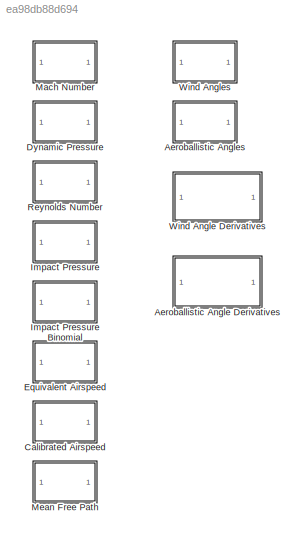
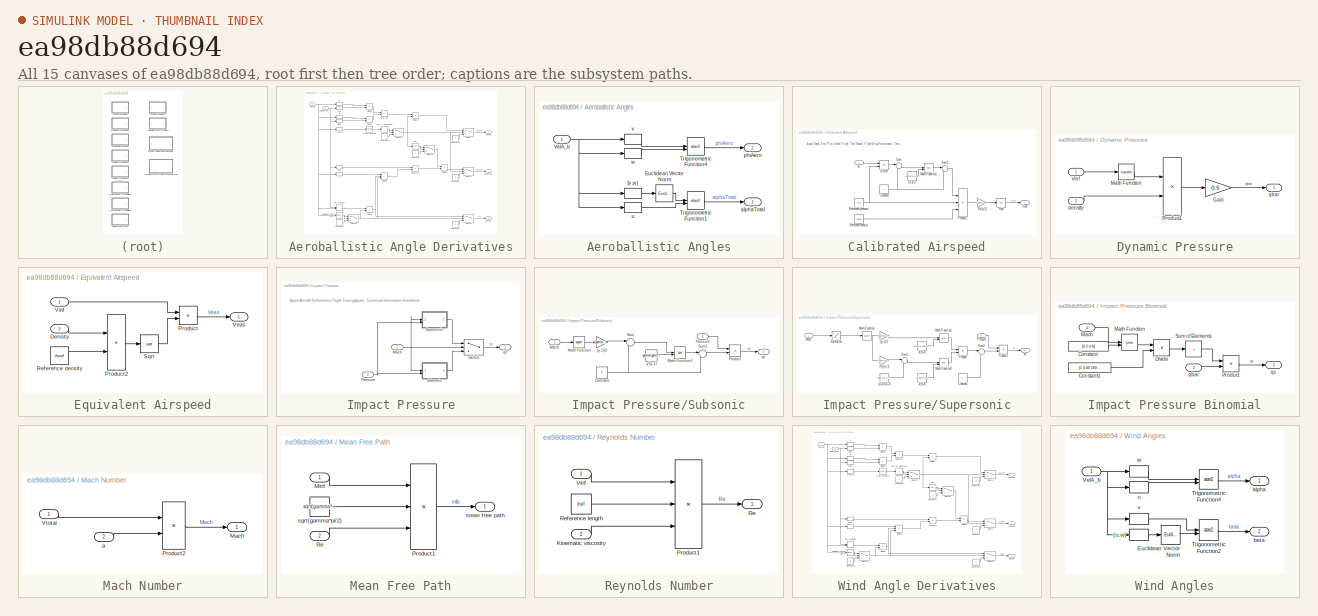
[diagram: thumbnail index - all 15 canvases of the model, root first then tree order]
MODEL slx_ea98db88d694
KIND library
CONFIG AbsTol = auto
CONFIG EnableMultiTasking = on
CONFIG FixedStep = auto
CONFIG MaxStep = auto
CONFIG MinStep = auto
CONFIG RelTol = 1e-3
CONFIG SampleTimeConstraint = Unconstrained
CONFIG SolverName = ode45
CONFIG StartTime = 0.0
CONFIG StopTime = 10.0
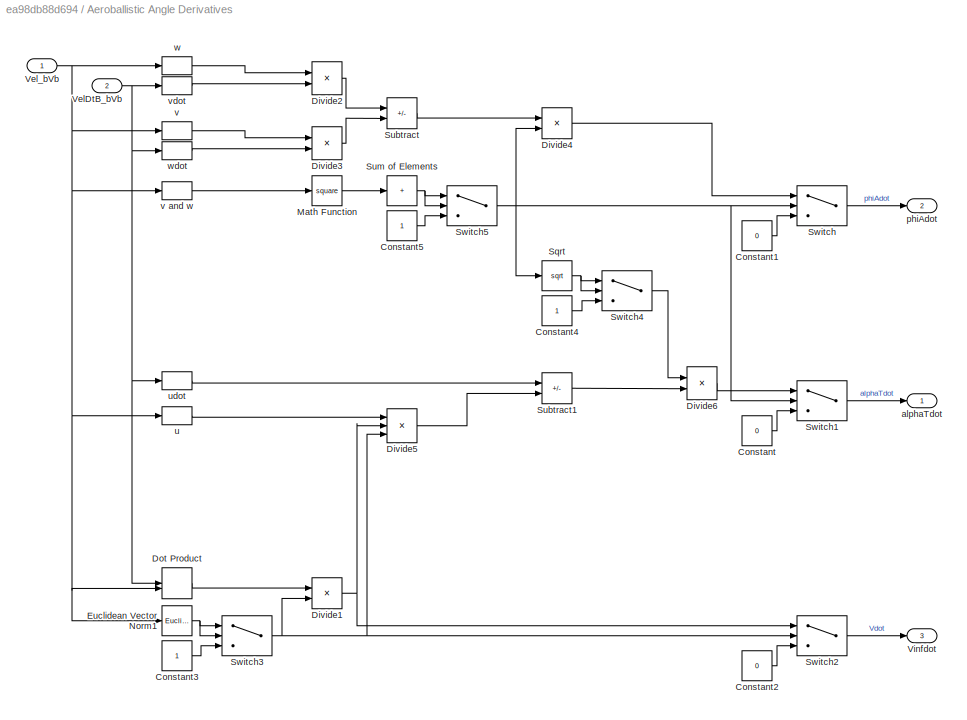
BLOCK [SubSystem] Aeroballistic Angle Derivatives
BLOCK [Constant] Aeroballistic Angle Derivatives/Constant
  Value = 0
BLOCK [Constant] Aeroballistic Angle Derivatives/Constant1
  Value = 0
BLOCK [Constant] Aeroballistic Angle Derivatives/Constant2
  Value = 0
BLOCK [Constant] Aeroballistic Angle Derivatives/Constant3
BLOCK [Constant] Aeroballistic Angle Derivatives/Constant4
BLOCK [Constant] Aeroballistic Angle Derivatives/Constant5
BLOCK [Product] Aeroballistic Angle Derivatives/Divide1
  Inputs = */
BLOCK [Product] Aeroballistic Angle Derivatives/Divide2
BLOCK [Product] Aeroballistic Angle Derivatives/Divide3
BLOCK [Product] Aeroballistic Angle Derivatives/Divide4
  Inputs = */
BLOCK [Product] Aeroballistic Angle Derivatives/Divide5
  Inputs = **/
BLOCK [Product] Aeroballistic Angle Derivatives/Divide6
  Inputs = /*
BLOCK [DotProduct] Aeroballistic Angle Derivatives/Dot Product
  OutDataTypeStr = Inherit: Inherit via internal rule
BLOCK [Reference] Aeroballistic Angle Derivatives/Euclidean Vector Norm1  REF=starslibMathOperations/Euclidean Vector Norm
  SourceBlock = starslibMathOperations/Euclidean Vector Norm
  SourceType = Euclidean Norm
BLOCK [Math] Aeroballistic Angle Derivatives/Math Function
  Operator = square
  SignedPower = on
BLOCK [Sqrt] Aeroballistic Angle Derivatives/Sqrt
BLOCK [Sum] Aeroballistic Angle Derivatives/Subtract
  IconShape = rectangular
  Inputs = +-
BLOCK [Sum] Aeroballistic Angle Derivatives/Subtract1
  IconShape = rectangular
  Inputs = -+
BLOCK [Sum] Aeroballistic Angle Derivatives/Sum of Elements
  CollapseMode = Specified dimension
  IconShape = rectangular
  Inputs = +
BLOCK [Switch] Aeroballistic Angle Derivatives/Switch
  Criteria = u2 > Threshold
  InputSameDT = off
  SaturateOnIntegerOverflow = off
BLOCK [Switch] Aeroballistic Angle Derivatives/Switch1
  Criteria = u2 > Threshold
  InputSameDT = off
  SaturateOnIntegerOverflow = off
BLOCK [Switch] Aeroballistic Angle Derivatives/Switch2
  Criteria = u2 > Threshold
  InputSameDT = off
  SaturateOnIntegerOverflow = off
BLOCK [Switch] Aeroballistic Angle Derivatives/Switch3
  Criteria = u2 > Threshold
  InputSameDT = off
  SaturateOnIntegerOverflow = off
BLOCK [Switch] Aeroballistic Angle Derivatives/Switch4
  Criteria = u2 > Threshold
  InputSameDT = off
  SaturateOnIntegerOverflow = off
BLOCK [Switch] Aeroballistic Angle Derivatives/Switch5
  Criteria = u2 > Threshold
  InputSameDT = off
  SaturateOnIntegerOverflow = off
BLOCK [Inport] Aeroballistic Angle Derivatives/VelDtB_bVb
  Port = 2
  PortDimensions = [3,1]
BLOCK [Inport] Aeroballistic Angle Derivatives/Vel_bVb
  PortDimensions = [3,1]
BLOCK [Outport] Aeroballistic Angle Derivatives/Vinfdot
  Port = 3
BLOCK [Outport] Aeroballistic Angle Derivatives/alphaTdot
BLOCK [Outport] Aeroballistic Angle Derivatives/phiAdot
  Port = 2
BLOCK [Selector] Aeroballistic Angle Derivatives/u
  IndexOptions = Index vector (dialog),Select all
  Indices = 1,1
  InputPortWidth = 3
  NameLocation = top
  NumberOfDimensions = 2
  OutputSizes = 1,1
BLOCK [Selector] Aeroballistic Angle Derivatives/udot
  IndexOptions = Index vector (dialog),Select all
  Indices = 1,1
  InputPortWidth = 3
  NameLocation = top
  NumberOfDimensions = 2
  OutputSizes = 1,1
BLOCK [Selector] Aeroballistic Angle Derivatives/v
  IndexOptions = Index vector (dialog),Select all
  Indices = 2,1
  InputPortWidth = 3
  NameLocation = top
  NumberOfDimensions = 2
  OutputSizes = 1,1
BLOCK [Selector] Aeroballistic Angle Derivatives/v and w
  IndexOptions = Index vector (dialog),Select all
  Indices = [2 3],1
  InputPortWidth = 3
  NumberOfDimensions = 2
  OutputSizes = 1,1
BLOCK [Selector] Aeroballistic Angle Derivatives/vdot
  IndexOptions = Index vector (dialog),Select all
  Indices = 2,1
  InputPortWidth = 3
  NumberOfDimensions = 2
  OutputSizes = 1,1
BLOCK [Selector] Aeroballistic Angle Derivatives/w
  IndexOptions = Index vector (dialog),Select all
  Indices = 3,1
  InputPortWidth = 3
  NameLocation = top
  NumberOfDimensions = 2
  OutputSizes = 1,1
BLOCK [Selector] Aeroballistic Angle Derivatives/wdot
  IndexOptions = Index vector (dialog),Select all
  Indices = 3,1
  InputPortWidth = 3
  NumberOfDimensions = 2
  OutputSizes = 1,1
BLOCK [SubSystem] Aeroballistic Angles
BLOCK [Reference] Aeroballistic Angles/Euclidean Vector Norm  REF=starslibMathOperations/Euclidean Vector Norm
  SourceBlock = starslibMathOperations/Euclidean Vector Norm
  SourceType = Euclidean Norm
BLOCK [Trigonometry] Aeroballistic Angles/Trigonometric Function1
  Operator = atan2
  OutputSignalType = real
BLOCK [Trigonometry] Aeroballistic Angles/Trigonometric Function4
  Operator = atan2
  OutputSignalType = real
BLOCK [Inport] Aeroballistic Angles/VelA_b
BLOCK [Selector] Aeroballistic Angles/[v,w]
  IndexOptions = Index vector (dialog),Select all
  Indices = [2 3],1
  InputPortWidth = 3
  NameLocation = top
  NumberOfDimensions = 2
  OutputSizes = 1,1
BLOCK [Outport] Aeroballistic Angles/alphaTotal
BLOCK [Outport] Aeroballistic Angles/phiAero
  Port = 2
BLOCK [Selector] Aeroballistic Angles/u
  IndexOptions = Index vector (dialog),Select all
  Indices = 1,1
  InputPortWidth = 3
  NumberOfDimensions = 2
  OutputSizes = 1,1
BLOCK [Selector] Aeroballistic Angles/v
  IndexOptions = Index vector (dialog),Select all
  Indices = 2,1
  InputPortWidth = 3
  NameLocation = top
  NumberOfDimensions = 2
  OutputSizes = 1,1
BLOCK [Selector] Aeroballistic Angles/w
  IndexOptions = Index vector (dialog),Select all
  Indices = 3,1
  InputPortWidth = 3
  NumberOfDimensions = 2
  OutputSizes = 1,1
BLOCK [SubSystem] Calibrated Airspeed
BLOCK [Constant] Calibrated Airspeed/(y-1)//y
  Value = (gamma-1)/gamma
BLOCK [Gain] Calibrated Airspeed/2*y//(y-1)
  Gain = 2*gamma/(gamma-1)
BLOCK [Constant] Calibrated Airspeed/Constant
BLOCK [Product] Calibrated Airspeed/Divide
  Inputs = */
BLOCK [Math] Calibrated Airspeed/Math Function1
  Operator = pow
  SignedPower = on
BLOCK [Product] Calibrated Airspeed/Product2
  Inputs = **/
  RndMeth = Zero
BLOCK [Constant] Calibrated Airspeed/Reference density
  Value = rhoref
BLOCK [Constant] Calibrated Airspeed/Reference pressure
  Value = Pref
BLOCK [Sqrt] Calibrated Airspeed/Sqrt
BLOCK [Sum] Calibrated Airspeed/Sum
  Inputs = |++
BLOCK [Sum] Calibrated Airspeed/Sum1
  Inputs = |+-
BLOCK [Outport] Calibrated Airspeed/Vcas
BLOCK [Inport] Calibrated Airspeed/qc
BLOCK [SubSystem] Dynamic Pressure
BLOCK [Gain] Dynamic Pressure/Gain
  Gain = 0.5
  OutDataTypeStr = Inherit: Same as input
  ParamDataTypeStr = Inherit: Same as input
  SaturateOnIntegerOverflow = on
BLOCK [Math] Dynamic Pressure/Math Function
  Operator = square
  SignedPower = on
BLOCK [Product] Dynamic Pressure/Product1
  InputSameDT = on
  OutDataTypeStr = Inherit: Same as first input
  SaturateOnIntegerOverflow = on
BLOCK [Inport] Dynamic Pressure/Vinf
BLOCK [Inport] Dynamic Pressure/density
  Port = 2
BLOCK [Outport] Dynamic Pressure/qbar
BLOCK [SubSystem] Equivalent Airspeed
BLOCK [Inport] Equivalent Airspeed/Density
  Port = 2
BLOCK [Product] Equivalent Airspeed/Product
  RndMeth = Zero
BLOCK [Product] Equivalent Airspeed/Product2
  Inputs = */
  RndMeth = Zero
BLOCK [Constant] Equivalent Airspeed/Reference density
  Value = rhoref
BLOCK [Sqrt] Equivalent Airspeed/Sqrt
BLOCK [Outport] Equivalent Airspeed/Veas
BLOCK [Inport] Equivalent Airspeed/Vinf
BLOCK [SubSystem] Impact Pressure
BLOCK [SubSystem] Impact Pressure Binomial
BLOCK [Constant] Impact Pressure Binomial/Constant
  Value = [0 2 4 6]
BLOCK [Constant] Impact Pressure Binomial/Constant1
  Value = [1 4 40 1600]
BLOCK [Product] Impact Pressure Binomial/Divide
  Inputs = */
BLOCK [Inport] Impact Pressure Binomial/Mach
BLOCK [Math] Impact Pressure Binomial/Math Function
  Operator = pow
  SignedPower = on
BLOCK [Product] Impact Pressure Binomial/Product
  RndMeth = Zero
BLOCK [Sum] Impact Pressure Binomial/Sum of Elements
  IconShape = rectangular
  Inputs = +
BLOCK [Inport] Impact Pressure Binomial/qbar
  Port = 2
BLOCK [Outport] Impact Pressure Binomial/qc
BLOCK [Inport] Impact Pressure/Mach
BLOCK [Inport] Impact Pressure/Pressure
  Port = 2
BLOCK [SubSystem] Impact Pressure/Subsonic
BLOCK [Gain] Impact Pressure/Subsonic/(y-1)//2
  Gain = (gamma - 1)/2
BLOCK [Constant] Impact Pressure/Subsonic/Constant
BLOCK [Inport] Impact Pressure/Subsonic/Mach
BLOCK [Math] Impact Pressure/Subsonic/Math Function
  Operator = square
  SignedPower = on
BLOCK [Math] Impact Pressure/Subsonic/Math Function1
  Operator = pow
  SignedPower = on
BLOCK [Inport] Impact Pressure/Subsonic/Pressure
  Port = 2
BLOCK [Product] Impact Pressure/Subsonic/Product
  RndMeth = Zero
BLOCK [Sum] Impact Pressure/Subsonic/Sum
  Inputs = |++
BLOCK [Sum] Impact Pressure/Subsonic/Sum1
  Inputs = |+-
BLOCK [Outport] Impact Pressure/Subsonic/qc
BLOCK [Constant] Impact Pressure/Subsonic/y//(y-1)
  Value = gamma/(gamma-1)
BLOCK [SubSystem] Impact Pressure/Supersonic
BLOCK [Gain] Impact Pressure/Supersonic/(y+1)//2
  Gain = (gamma + 1)/2
BLOCK [Constant] Impact Pressure/Supersonic/(y-1)//(y+1)
  Value = (gamma-1)/(gamma+1)
BLOCK [Constant] Impact Pressure/Supersonic/1//(y-1)
  Value = 1/(gamma-1)
BLOCK [Gain] Impact Pressure/Supersonic/2*y//(y+1)
  Gain = 2*gamma/(gamma+1)
BLOCK [Constant] Impact Pressure/Supersonic/Constant
BLOCK [Inport] Impact Pressure/Supersonic/Mach
BLOCK [Math] Impact Pressure/Supersonic/Math Function
  Operator = square
  SignedPower = on
BLOCK [Math] Impact Pressure/Supersonic/Math Function1
  Operator = pow
  SignedPower = on
BLOCK [Math] Impact Pressure/Supersonic/Math Function2
  Operator = pow
  SignedPower = on
BLOCK [Inport] Impact Pressure/Supersonic/Pressure
  Port = 2
BLOCK [Product] Impact Pressure/Supersonic/Product
  RndMeth = Zero
BLOCK [Product] Impact Pressure/Supersonic/Product1
  RndMeth = Zero
BLOCK [Saturate] Impact Pressure/Supersonic/Saturation
  LinearizeAsGain = off
  LowerLimit = 1
  UpperLimit = Inf
BLOCK [Sum] Impact Pressure/Supersonic/Sum1
  Inputs = |+-
BLOCK [Sum] Impact Pressure/Supersonic/Sum2
  Inputs = |+-
BLOCK [Outport] Impact Pressure/Supersonic/qc
BLOCK [Constant] Impact Pressure/Supersonic/y//(y-1)
  Value = gamma/(gamma-1)
BLOCK [Switch] Impact Pressure/Switch
  Criteria = u2 > Threshold
  InputSameDT = off
  SaturateOnIntegerOverflow = off
  Threshold = 1
BLOCK [Outport] Impact Pressure/qc
BLOCK [SubSystem] Mach Number
BLOCK [Outport] Mach Number/Mach
BLOCK [Product] Mach Number/Product2
  Inputs = */
  OutDataTypeStr = Inherit: Same as first input
  SaturateOnIntegerOverflow = on
BLOCK [Inport] Mach Number/Vtotal
BLOCK [Inport] Mach Number/a
  Port = 2
BLOCK [SubSystem] Mean Free Path
BLOCK [Inport] Mean Free Path/Minf
BLOCK [Product] Mean Free Path/Product1
  InputSameDT = on
  Inputs = **/
  OutDataTypeStr = Inherit: Same as first input
  SaturateOnIntegerOverflow = on
BLOCK [Inport] Mean Free Path/Re
  Port = 2
BLOCK [Outport] Mean Free Path/mean free path
BLOCK [Constant] Mean Free Path/sqrt(gamma*pi//2)
  Value = sqrt(gamma*pi/2)
BLOCK [SubSystem] Reynolds Number
BLOCK [Inport] Reynolds Number/Kinematic viscosity
  Port = 2
BLOCK [Product] Reynolds Number/Product1
  InputSameDT = on
  Inputs = **/
  OutDataTypeStr = Inherit: Same as first input
  SaturateOnIntegerOverflow = on
BLOCK [Outport] Reynolds Number/Re
BLOCK [Constant] Reynolds Number/Reference length
  Value = lref
BLOCK [Inport] Reynolds Number/Vinf
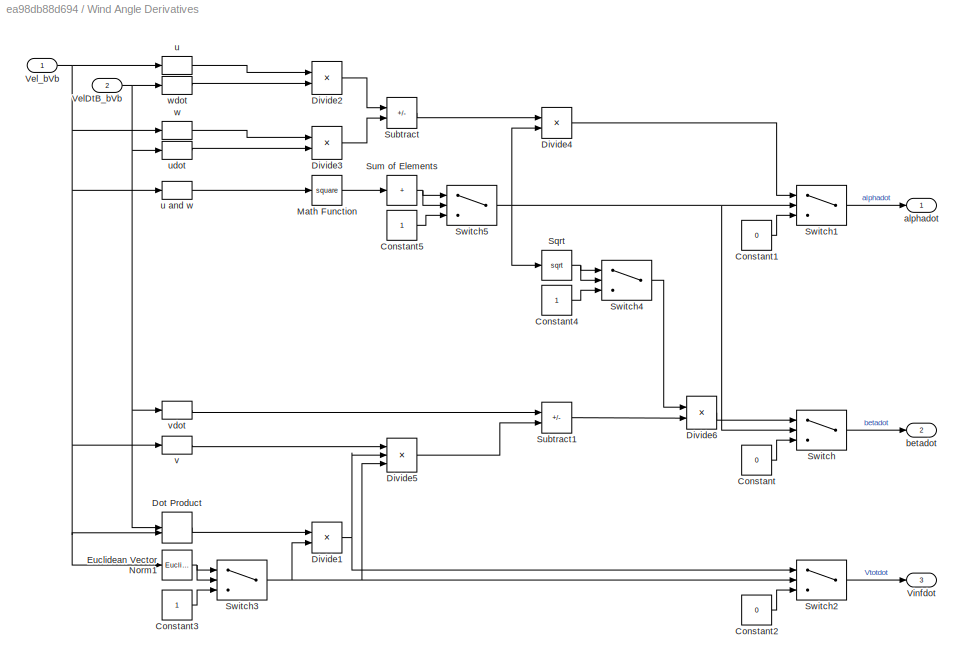
BLOCK [SubSystem] Wind Angle Derivatives
BLOCK [Constant] Wind Angle Derivatives/Constant
  Value = 0
BLOCK [Constant] Wind Angle Derivatives/Constant1
  Value = 0
BLOCK [Constant] Wind Angle Derivatives/Constant2
  Value = 0
BLOCK [Constant] Wind Angle Derivatives/Constant3
BLOCK [Constant] Wind Angle Derivatives/Constant4
BLOCK [Constant] Wind Angle Derivatives/Constant5
BLOCK [Product] Wind Angle Derivatives/Divide1
  Inputs = */
BLOCK [Product] Wind Angle Derivatives/Divide2
BLOCK [Product] Wind Angle Derivatives/Divide3
BLOCK [Product] Wind Angle Derivatives/Divide4
  Inputs = */
BLOCK [Product] Wind Angle Derivatives/Divide5
  Inputs = **/
BLOCK [Product] Wind Angle Derivatives/Divide6
  Inputs = /*
BLOCK [DotProduct] Wind Angle Derivatives/Dot Product
  OutDataTypeStr = Inherit: Inherit via internal rule
BLOCK [Reference] Wind Angle Derivatives/Euclidean Vector Norm1  REF=starslibMathOperations/Euclidean Vector Norm
  SourceBlock = starslibMathOperations/Euclidean Vector Norm
  SourceType = Euclidean Norm
BLOCK [Math] Wind Angle Derivatives/Math Function
  Operator = square
  SignedPower = on
BLOCK [Sqrt] Wind Angle Derivatives/Sqrt
BLOCK [Sum] Wind Angle Derivatives/Subtract
  IconShape = rectangular
  Inputs = +-
BLOCK [Sum] Wind Angle Derivatives/Subtract1
  IconShape = rectangular
  Inputs = +-
BLOCK [Sum] Wind Angle Derivatives/Sum of Elements
  CollapseMode = Specified dimension
  IconShape = rectangular
  Inputs = +
BLOCK [Switch] Wind Angle Derivatives/Switch
  Criteria = u2 > Threshold
  InputSameDT = off
  SaturateOnIntegerOverflow = off
BLOCK [Switch] Wind Angle Derivatives/Switch1
  Criteria = u2 > Threshold
  InputSameDT = off
  SaturateOnIntegerOverflow = off
BLOCK [Switch] Wind Angle Derivatives/Switch2
  Criteria = u2 > Threshold
  InputSameDT = off
  SaturateOnIntegerOverflow = off
BLOCK [Switch] Wind Angle Derivatives/Switch3
  Criteria = u2 > Threshold
  InputSameDT = off
  SaturateOnIntegerOverflow = off
BLOCK [Switch] Wind Angle Derivatives/Switch4
  Criteria = u2 > Threshold
  InputSameDT = off
  SaturateOnIntegerOverflow = off
BLOCK [Switch] Wind Angle Derivatives/Switch5
  Criteria = u2 > Threshold
  InputSameDT = off
  SaturateOnIntegerOverflow = off
BLOCK [Inport] Wind Angle Derivatives/VelDtB_bVb
  Port = 2
  PortDimensions = [3,1]
BLOCK [Inport] Wind Angle Derivatives/Vel_bVb
  PortDimensions = [3,1]
BLOCK [Outport] Wind Angle Derivatives/Vinfdot
  Port = 3
BLOCK [Outport] Wind Angle Derivatives/alphadot
BLOCK [Outport] Wind Angle Derivatives/betadot
  Port = 2
BLOCK [Selector] Wind Angle Derivatives/u
  IndexOptions = Index vector (dialog),Select all
  Indices = 1,1
  InputPortWidth = 3
  NameLocation = top
  NumberOfDimensions = 2
  OutputSizes = 1,1
BLOCK [Selector] Wind Angle Derivatives/u and w
  IndexOptions = Index vector (dialog),Select all
  Indices = [1 3],1
  InputPortWidth = 3
  NumberOfDimensions = 2
  OutputSizes = 1,1
BLOCK [Selector] Wind Angle Derivatives/udot
  IndexOptions = Index vector (dialog),Select all
  Indices = 1,1
  InputPortWidth = 3
  NumberOfDimensions = 2
  OutputSizes = 1,1
BLOCK [Selector] Wind Angle Derivatives/v
  IndexOptions = Index vector (dialog),Select all
  Indices = 2,1
  InputPortWidth = 3
  NameLocation = top
  NumberOfDimensions = 2
  OutputSizes = 1,1
BLOCK [Selector] Wind Angle Derivatives/vdot
  IndexOptions = Index vector (dialog),Select all
  Indices = 2,1
  InputPortWidth = 3
  NameLocation = top
  NumberOfDimensions = 2
  OutputSizes = 1,1
BLOCK [Selector] Wind Angle Derivatives/w
  IndexOptions = Index vector (dialog),Select all
  Indices = 3,1
  InputPortWidth = 3
  NameLocation = top
  NumberOfDimensions = 2
  OutputSizes = 1,1
BLOCK [Selector] Wind Angle Derivatives/wdot
  IndexOptions = Index vector (dialog),Select all
  Indices = 3,1
  InputPortWidth = 3
  NumberOfDimensions = 2
  OutputSizes = 1,1
BLOCK [SubSystem] Wind Angles
BLOCK [Reference] Wind Angles/Euclidean Vector Norm  REF=starslibMathOperations/Euclidean Vector Norm
  SourceBlock = starslibMathOperations/Euclidean Vector Norm
  SourceType = Euclidean Norm
BLOCK [Trigonometry] Wind Angles/Trigonometric Function2
  Operator = atan2
  OutputSignalType = real
BLOCK [Trigonometry] Wind Angles/Trigonometric Function4
  Operator = atan2
  OutputSignalType = real
BLOCK [Inport] Wind Angles/VelA_b
BLOCK [Selector] Wind Angles/[u,w]
  IndexOptions = Index vector (dialog),Select all
  Indices = [1 3],1
  InputPortWidth = 3
  NumberOfDimensions = 2
  OutputSizes = 1,1
BLOCK [Outport] Wind Angles/alpha
BLOCK [Outport] Wind Angles/beta
  Port = 2
BLOCK [Selector] Wind Angles/u
  IndexOptions = Index vector (dialog),Select all
  Indices = 1,1
  InputPortWidth = 3
  NumberOfDimensions = 2
  OutputSizes = 1,1
BLOCK [Selector] Wind Angles/v
  IndexOptions = Index vector (dialog),Select all
  Indices = 2,1
  InputPortWidth = 3
  NameLocation = top
  NumberOfDimensions = 2
  OutputSizes = 1,1
BLOCK [Selector] Wind Angles/w
  IndexOptions = Index vector (dialog),Select all
  Indices = 3,1
  InputPortWidth = 3
  NameLocation = top
  NumberOfDimensions = 2
  OutputSizes = 1,1
ANNOTATION Calibrated Airspeed: "Naval Test Pilot School Flight Test Manual, Fixed Wing Performance, Theory and Flight Test Techniques", July 1977, ADA061239, USNTPS FTM No. 104, Section IV Pg. IV-10
ANNOTATION Impact Pressure: "Aircraft Performance Flight Testing", Technical Information Handbook September 2000, AFFTC-TIH-99-01, Sec 4, pg. 33
LINE Aeroballistic Angle Derivatives/Constant1:1 -> Aeroballistic Angle Derivatives/Switch:3
LINE Aeroballistic Angle Derivatives/Constant2:1 -> Aeroballistic Angle Derivatives/Switch2:3
LINE Aeroballistic Angle Derivatives/Constant3:1 -> Aeroballistic Angle Derivatives/Switch3:3
LINE Aeroballistic Angle Derivatives/Constant4:1 -> Aeroballistic Angle Derivatives/Switch4:3
LINE Aeroballistic Angle Derivatives/Constant5:1 -> Aeroballistic Angle Derivatives/Switch5:3
LINE Aeroballistic Angle Derivatives/Constant:1 -> Aeroballistic Angle Derivatives/Switch1:3
NET Aeroballistic Angle Derivatives/Divide1:1 -> Aeroballistic Angle Derivatives/Divide5:2, Aeroballistic Angle Derivatives/Switch2:1
LINE Aeroballistic Angle Derivatives/Divide2:1 -> Aeroballistic Angle Derivatives/Subtract:1
LINE Aeroballistic Angle Derivatives/Divide3:1 -> Aeroballistic Angle Derivatives/Subtract:2
LINE Aeroballistic Angle Derivatives/Divide4:1 -> Aeroballistic Angle Derivatives/Switch:1
LINE Aeroballistic Angle Derivatives/Divide5:1 -> Aeroballistic Angle Derivatives/Subtract1:2
LINE Aeroballistic Angle Derivatives/Divide6:1 -> Aeroballistic Angle Derivatives/Switch1:1
LINE Aeroballistic Angle Derivatives/Dot Product:1 -> Aeroballistic Angle Derivatives/Divide1:1
NET Aeroballistic Angle Derivatives/Euclidean Vector Norm1:1 -> Aeroballistic Angle Derivatives/Switch3:1, Aeroballistic Angle Derivatives/Switch3:2
LINE Aeroballistic Angle Derivatives/Math Function:1 -> Aeroballistic Angle Derivatives/Sum of Elements:1
NET Aeroballistic Angle Derivatives/Sqrt:1 -> Aeroballistic Angle Derivatives/Switch4:1, Aeroballistic Angle Derivatives/Switch4:2
LINE Aeroballistic Angle Derivatives/Subtract1:1 -> Aeroballistic Angle Derivatives/Divide6:2
LINE Aeroballistic Angle Derivatives/Subtract:1 -> Aeroballistic Angle Derivatives/Divide4:1
NET Aeroballistic Angle Derivatives/Sum of Elements:1 -> Aeroballistic Angle Derivatives/Switch5:1, Aeroballistic Angle Derivatives/Switch5:2
LINE Aeroballistic Angle Derivatives/Switch1:1 -> Aeroballistic Angle Derivatives/alphaTdot:1
LINE Aeroballistic Angle Derivatives/Switch2:1 -> Aeroballistic Angle Derivatives/Vinfdot:1
NET Aeroballistic Angle Derivatives/Switch3:1 -> Aeroballistic Angle Derivatives/Divide1:2, Aeroballistic Angle Derivatives/Divide5:3, Aeroballistic Angle Derivatives/Switch2:2
LINE Aeroballistic Angle Derivatives/Switch4:1 -> Aeroballistic Angle Derivatives/Divide6:1
NET Aeroballistic Angle Derivatives/Switch5:1 -> Aeroballistic Angle Derivatives/Divide4:2, Aeroballistic Angle Derivatives/Sqrt:1, Aeroballistic Angle Derivatives/Switch1:2, Aeroballistic Angle Derivatives/Switch:2
LINE Aeroballistic Angle Derivatives/Switch:1 -> Aeroballistic Angle Derivatives/phiAdot:1
NET Aeroballistic Angle Derivatives/VelDtB_bVb:1 -> Aeroballistic Angle Derivatives/Dot Product:1, Aeroballistic Angle Derivatives/udot:1, Aeroballistic Angle Derivatives/vdot:1, Aeroballistic Angle Derivatives/wdot:1
NET Aeroballistic Angle Derivatives/Vel_bVb:1 -> Aeroballistic Angle Derivatives/Dot Product:2, Aeroballistic Angle Derivatives/Euclidean Vector Norm1:1, Aeroballistic Angle Derivatives/u:1, Aeroballistic Angle Derivatives/v and w:1, Aeroballistic Angle Derivatives/v:1, Aeroballistic Angle Derivatives/w:1
LINE Aeroballistic Angle Derivatives/u:1 -> Aeroballistic Angle Derivatives/Divide5:1
LINE Aeroballistic Angle Derivatives/udot:1 -> Aeroballistic Angle Derivatives/Subtract1:1
LINE Aeroballistic Angle Derivatives/v and w:1 -> Aeroballistic Angle Derivatives/Math Function:1
LINE Aeroballistic Angle Derivatives/v:1 -> Aeroballistic Angle Derivatives/Divide3:1
LINE Aeroballistic Angle Derivatives/vdot:1 -> Aeroballistic Angle Derivatives/Divide2:2
LINE Aeroballistic Angle Derivatives/w:1 -> Aeroballistic Angle Derivatives/Divide2:1
LINE Aeroballistic Angle Derivatives/wdot:1 -> Aeroballistic Angle Derivatives/Divide3:2
LINE Aeroballistic Angles/Euclidean Vector Norm:1 -> Aeroballistic Angles/Trigonometric Function1:1
LINE Aeroballistic Angles/Trigonometric Function1:1 -> Aeroballistic Angles/alphaTotal:1
LINE Aeroballistic Angles/Trigonometric Function4:1 -> Aeroballistic Angles/phiAero:1
NET Aeroballistic Angles/VelA_b:1 -> Aeroballistic Angles/[v,w]:1, Aeroballistic Angles/u:1, Aeroballistic Angles/v:1, Aeroballistic Angles/w:1
LINE Aeroballistic Angles/[v,w]:1 -> Aeroballistic Angles/Euclidean Vector Norm:1
LINE Aeroballistic Angles/u:1 -> Aeroballistic Angles/Trigonometric Function1:2
LINE Aeroballistic Angles/v:1 -> Aeroballistic Angles/Trigonometric Function4:1
LINE Aeroballistic Angles/w:1 -> Aeroballistic Angles/Trigonometric Function4:2
LINE Calibrated Airspeed/(y-1)//y:1 -> Calibrated Airspeed/Math Function1:2
LINE Calibrated Airspeed/2*y//(y-1):1 -> Calibrated Airspeed/Sqrt:1
NET Calibrated Airspeed/Constant:1 -> Calibrated Airspeed/Sum1:2, Calibrated Airspeed/Sum:2
LINE Calibrated Airspeed/Divide:1 -> Calibrated Airspeed/Sum:1
LINE Calibrated Airspeed/Math Function1:1 -> Calibrated Airspeed/Sum1:1
LINE Calibrated Airspeed/Product2:1 -> Calibrated Airspeed/2*y//(y-1):1
LINE Calibrated Airspeed/Reference density:1 -> Calibrated Airspeed/Product2:3
NET Calibrated Airspeed/Reference pressure:1 -> Calibrated Airspeed/Divide:2, Calibrated Airspeed/Product2:2
LINE Calibrated Airspeed/Sqrt:1 -> Calibrated Airspeed/Vcas:1
LINE Calibrated Airspeed/Sum1:1 -> Calibrated Airspeed/Product2:1
LINE Calibrated Airspeed/Sum:1 -> Calibrated Airspeed/Math Function1:1
LINE Calibrated Airspeed/qc:1 -> Calibrated Airspeed/Divide:1
LINE Dynamic Pressure/Gain:1 -> Dynamic Pressure/qbar:1
LINE Dynamic Pressure/Math Function:1 -> Dynamic Pressure/Product1:1
LINE Dynamic Pressure/Product1:1 -> Dynamic Pressure/Gain:1
LINE Dynamic Pressure/Vinf:1 -> Dynamic Pressure/Math Function:1
LINE Dynamic Pressure/density:1 -> Dynamic Pressure/Product1:2
LINE Equivalent Airspeed/Density:1 -> Equivalent Airspeed/Product2:1
LINE Equivalent Airspeed/Product2:1 -> Equivalent Airspeed/Sqrt:1
LINE Equivalent Airspeed/Product:1 -> Equivalent Airspeed/Veas:1
LINE Equivalent Airspeed/Reference density:1 -> Equivalent Airspeed/Product2:2
LINE Equivalent Airspeed/Sqrt:1 -> Equivalent Airspeed/Product:2
LINE Equivalent Airspeed/Vinf:1 -> Equivalent Airspeed/Product:1
LINE Impact Pressure Binomial/Constant1:1 -> Impact Pressure Binomial/Divide:2
LINE Impact Pressure Binomial/Constant:1 -> Impact Pressure Binomial/Math Function:2
LINE Impact Pressure Binomial/Divide:1 -> Impact Pressure Binomial/Sum of Elements:1
LINE Impact Pressure Binomial/Mach:1 -> Impact Pressure Binomial/Math Function:1
LINE Impact Pressure Binomial/Math Function:1 -> Impact Pressure Binomial/Divide:1
LINE Impact Pressure Binomial/Product:1 -> Impact Pressure Binomial/qc:1
LINE Impact Pressure Binomial/Sum of Elements:1 -> Impact Pressure Binomial/Product:1
LINE Impact Pressure Binomial/qbar:1 -> Impact Pressure Binomial/Product:2
NET Impact Pressure/Mach:1 -> Impact Pressure/Subsonic:1, Impact Pressure/Supersonic:1, Impact Pressure/Switch:2
NET Impact Pressure/Pressure:1 -> Impact Pressure/Subsonic:2, Impact Pressure/Supersonic:2
LINE Impact Pressure/Subsonic/(y-1)//2:1 -> Impact Pressure/Subsonic/Sum:1
NET Impact Pressure/Subsonic/Constant:1 -> Impact Pressure/Subsonic/Sum1:2, Impact Pressure/Subsonic/Sum:2
LINE Impact Pressure/Subsonic/Mach:1 -> Impact Pressure/Subsonic/Math Function:1
LINE Impact Pressure/Subsonic/Math Function1:1 -> Impact Pressure/Subsonic/Sum1:1
LINE Impact Pressure/Subsonic/Math Function:1 -> Impact Pressure/Subsonic/(y-1)//2:1
LINE Impact Pressure/Subsonic/Pressure:1 -> Impact Pressure/Subsonic/Product:1
LINE Impact Pressure/Subsonic/Product:1 -> Impact Pressure/Subsonic/qc:1
LINE Impact Pressure/Subsonic/Sum1:1 -> Impact Pressure/Subsonic/Product:2
LINE Impact Pressure/Subsonic/Sum:1 -> Impact Pressure/Subsonic/Math Function1:1
LINE Impact Pressure/Subsonic/y//(y-1):1 -> Impact Pressure/Subsonic/Math Function1:2
LINE Impact Pressure/Subsonic:1 -> Impact Pressure/Switch:3
LINE Impact Pressure/Supersonic/(y+1)//2:1 -> Impact Pressure/Supersonic/Math Function1:1
LINE Impact Pressure/Supersonic/(y-1)//(y+1):1 -> Impact Pressure/Supersonic/Sum1:2
LINE Impact Pressure/Supersonic/1//(y-1):1 -> Impact Pressure/Supersonic/Math Function2:2
LINE Impact Pressure/Supersonic/2*y//(y+1):1 -> Impact Pressure/Supersonic/Sum1:1
LINE Impact Pressure/Supersonic/Constant:1 -> Impact Pressure/Supersonic/Sum2:2
LINE Impact Pressure/Supersonic/Mach:1 -> Impact Pressure/Supersonic/Saturation:1
LINE Impact Pressure/Supersonic/Math Function1:1 -> Impact Pressure/Supersonic/Product:1
LINE Impact Pressure/Supersonic/Math Function2:1 -> Impact Pressure/Supersonic/Product:2
NET Impact Pressure/Supersonic/Math Function:1 -> Impact Pressure/Supersonic/(y+1)//2:1, Impact Pressure/Supersonic/2*y//(y+1):1
LINE Impact Pressure/Supersonic/Pressure:1 -> Impact Pressure/Supersonic/Product1:1
LINE Impact Pressure/Supersonic/Product1:1 -> Impact Pressure/Supersonic/qc:1
LINE Impact Pressure/Supersonic/Product:1 -> Impact Pressure/Supersonic/Sum2:1
LINE Impact Pressure/Supersonic/Saturation:1 -> Impact Pressure/Supersonic/Math Function:1
LINE Impact Pressure/Supersonic/Sum1:1 -> Impact Pressure/Supersonic/Math Function2:1
LINE Impact Pressure/Supersonic/Sum2:1 -> Impact Pressure/Supersonic/Product1:2
LINE Impact Pressure/Supersonic/y//(y-1):1 -> Impact Pressure/Supersonic/Math Function1:2
LINE Impact Pressure/Supersonic:1 -> Impact Pressure/Switch:1
LINE Impact Pressure/Switch:1 -> Impact Pressure/qc:1
LINE Mach Number/Product2:1 -> Mach Number/Mach:1
LINE Mach Number/Vtotal:1 -> Mach Number/Product2:1
LINE Mach Number/a:1 -> Mach Number/Product2:2
LINE Mean Free Path/Minf:1 -> Mean Free Path/Product1:1
LINE Mean Free Path/Product1:1 -> Mean Free Path/mean free path:1
LINE Mean Free Path/Re:1 -> Mean Free Path/Product1:3
LINE Mean Free Path/sqrt(gamma*pi//2):1 -> Mean Free Path/Product1:2
LINE Reynolds Number/Kinematic viscosity:1 -> Reynolds Number/Product1:3
LINE Reynolds Number/Product1:1 -> Reynolds Number/Re:1
LINE Reynolds Number/Reference length:1 -> Reynolds Number/Product1:2
LINE Reynolds Number/Vinf:1 -> Reynolds Number/Product1:1
LINE Wind Angle Derivatives/Constant1:1 -> Wind Angle Derivatives/Switch1:3
LINE Wind Angle Derivatives/Constant2:1 -> Wind Angle Derivatives/Switch2:3
LINE Wind Angle Derivatives/Constant3:1 -> Wind Angle Derivatives/Switch3:3
LINE Wind Angle Derivatives/Constant4:1 -> Wind Angle Derivatives/Switch4:3
LINE Wind Angle Derivatives/Constant5:1 -> Wind Angle Derivatives/Switch5:3
LINE Wind Angle Derivatives/Constant:1 -> Wind Angle Derivatives/Switch:3
NET Wind Angle Derivatives/Divide1:1 -> Wind Angle Derivatives/Divide5:2, Wind Angle Derivatives/Switch2:1
LINE Wind Angle Derivatives/Divide2:1 -> Wind Angle Derivatives/Subtract:1
LINE Wind Angle Derivatives/Divide3:1 -> Wind Angle Derivatives/Subtract:2
LINE Wind Angle Derivatives/Divide4:1 -> Wind Angle Derivatives/Switch1:1
LINE Wind Angle Derivatives/Divide5:1 -> Wind Angle Derivatives/Subtract1:2
LINE Wind Angle Derivatives/Divide6:1 -> Wind Angle Derivatives/Switch:1
LINE Wind Angle Derivatives/Dot Product:1 -> Wind Angle Derivatives/Divide1:1
NET Wind Angle Derivatives/Euclidean Vector Norm1:1 -> Wind Angle Derivatives/Switch3:1, Wind Angle Derivatives/Switch3:2
LINE Wind Angle Derivatives/Math Function:1 -> Wind Angle Derivatives/Sum of Elements:1
NET Wind Angle Derivatives/Sqrt:1 -> Wind Angle Derivatives/Switch4:1, Wind Angle Derivatives/Switch4:2
LINE Wind Angle Derivatives/Subtract1:1 -> Wind Angle Derivatives/Divide6:2
LINE Wind Angle Derivatives/Subtract:1 -> Wind Angle Derivatives/Divide4:1
NET Wind Angle Derivatives/Sum of Elements:1 -> Wind Angle Derivatives/Switch5:1, Wind Angle Derivatives/Switch5:2
LINE Wind Angle Derivatives/Switch1:1 -> Wind Angle Derivatives/alphadot:1
LINE Wind Angle Derivatives/Switch2:1 -> Wind Angle Derivatives/Vinfdot:1
NET Wind Angle Derivatives/Switch3:1 -> Wind Angle Derivatives/Divide1:2, Wind Angle Derivatives/Divide5:3, Wind Angle Derivatives/Switch2:2
LINE Wind Angle Derivatives/Switch4:1 -> Wind Angle Derivatives/Divide6:1
NET Wind Angle Derivatives/Switch5:1 -> Wind Angle Derivatives/Divide4:2, Wind Angle Derivatives/Sqrt:1, Wind Angle Derivatives/Switch1:2, Wind Angle Derivatives/Switch:2
LINE Wind Angle Derivatives/Switch:1 -> Wind Angle Derivatives/betadot:1
NET Wind Angle Derivatives/VelDtB_bVb:1 -> Wind Angle Derivatives/Dot Product:1, Wind Angle Derivatives/udot:1, Wind Angle Derivatives/vdot:1, Wind Angle Derivatives/wdot:1
NET Wind Angle Derivatives/Vel_bVb:1 -> Wind Angle Derivatives/Dot Product:2, Wind Angle Derivatives/Euclidean Vector Norm1:1, Wind Angle Derivatives/u and w:1, Wind Angle Derivatives/u:1, Wind Angle Derivatives/v:1, Wind Angle Derivatives/w:1
LINE Wind Angle Derivatives/u and w:1 -> Wind Angle Derivatives/Math Function:1
LINE Wind Angle Derivatives/u:1 -> Wind Angle Derivatives/Divide2:1
LINE Wind Angle Derivatives/udot:1 -> Wind Angle Derivatives/Divide3:2
LINE Wind Angle Derivatives/v:1 -> Wind Angle Derivatives/Divide5:1
LINE Wind Angle Derivatives/vdot:1 -> Wind Angle Derivatives/Subtract1:1
LINE Wind Angle Derivatives/w:1 -> Wind Angle Derivatives/Divide3:1
LINE Wind Angle Derivatives/wdot:1 -> Wind Angle Derivatives/Divide2:2
LINE Wind Angles/Euclidean Vector Norm:1 -> Wind Angles/Trigonometric Function2:2
LINE Wind Angles/Trigonometric Function2:1 -> Wind Angles/beta:1
LINE Wind Angles/Trigonometric Function4:1 -> Wind Angles/alpha:1
NET Wind Angles/VelA_b:1 -> Wind Angles/[u,w]:1, Wind Angles/u:1, Wind Angles/v:1, Wind Angles/w:1
LINE Wind Angles/[u,w]:1 -> Wind Angles/Euclidean Vector Norm:1
LINE Wind Angles/u:1 -> Wind Angles/Trigonometric Function4:2
LINE Wind Angles/v:1 -> Wind Angles/Trigonometric Function2:1
LINE Wind Angles/w:1 -> Wind Angles/Trigonometric Function4:1
note: NET lines group one-source signal fan-out (src -> all destinations, sorted); 1:1 wires keep LINE
